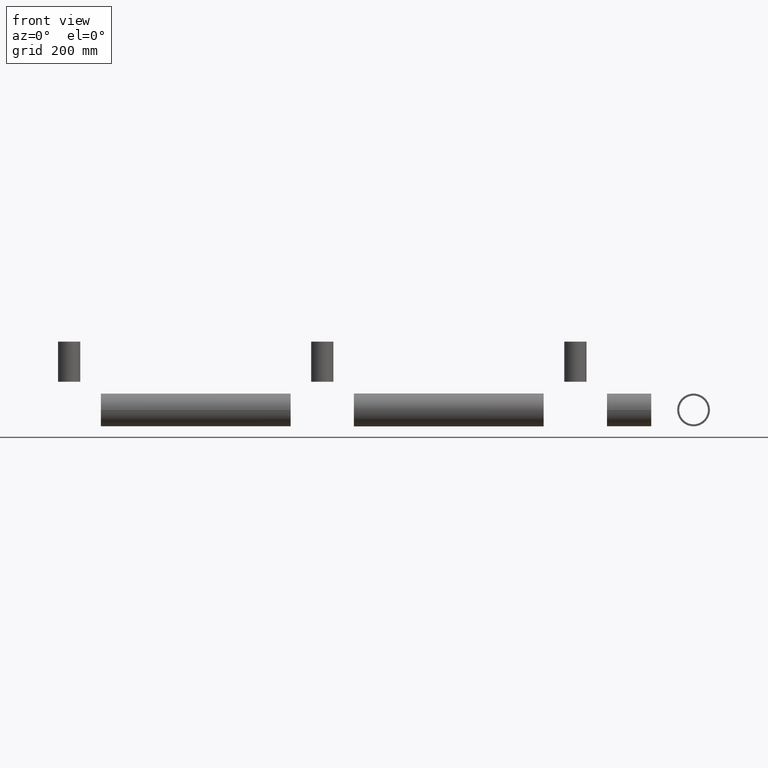
[diagram: clean part render]
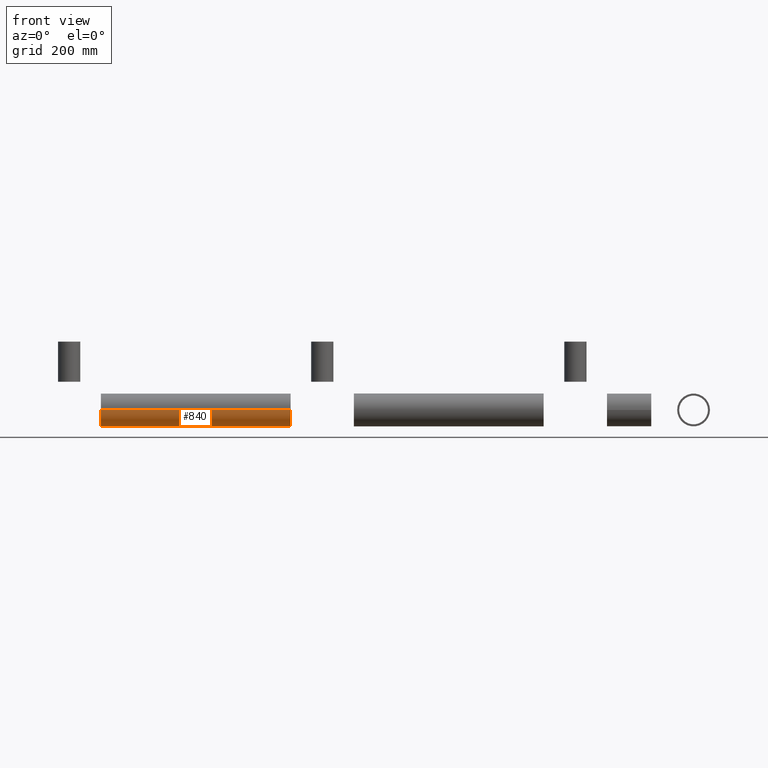
[diagram: same view with one face highlighted and labeled with its STEP entity id]
A machine part, front view. The second image highlights one B-rep face of the part: STEP entity #840.
In plain terms, the highlighted cylindrical surface (edge-blend (fillet) strip) has radius 44.45 mm, axis along (1, 0, -0).
Its self-contained STEP definition (entity closure, byte-faithful):
#22 = CARTESIAN_POINT ( 'NONE',  ( -599.3000000000000682, -44.45000000000001705, 5.443555022209986486E-15 ) ) ;
#35 = CIRCLE ( 'NONE', #239, 44.45000000000000995 ) ;
#39 = DIRECTION ( 'NONE',  ( 1.000000000000000000, 1.361513478024022673E-17, -5.755200308641385394E-66 ) ) ;
#69 = LINE ( 'NONE', #1125, #617 ) ;
#76 = VERTEX_POINT ( 'NONE', #390 ) ;
#102 = VERTEX_POINT ( 'NONE', #112 ) ;
#105 = CARTESIAN_POINT ( 'NONE',  ( -599.3000000000000682, -6.992733223131379957E-15, -2.091494006573643760E-63 ) ) ;
#112 = CARTESIAN_POINT ( 'NONE',  ( -85.70000000000000284, -44.45000000000000995, 5.443555022209986486E-15 ) ) ;
#116 = LINE ( 'NONE', #22, #398 ) ;
#156 = ORIENTED_EDGE ( 'NONE', *, *, #1115, .T. ) ;
#206 = DIRECTION ( 'NONE',  ( 0.000000000000000000, -1.000000000000000000, 0.000000000000000000 ) ) ;
#220 = CIRCLE ( 'NONE', #934, 44.45000000000000995 ) ;
#231 = FACE_OUTER_BOUND ( 'NONE', #832, .T. ) ;
#239 = AXIS2_PLACEMENT_3D ( 'NONE', #470, #962, #206 ) ;
#295 = CARTESIAN_POINT ( 'NONE',  ( -599.3000000000000682, -44.45000000000001705, 5.443555022209986486E-15 ) ) ;
#336 = DIRECTION ( 'NONE',  ( -1.000000000000000000, -1.361513478024022673E-17, 5.755200308641385394E-66 ) ) ;
#344 = ORIENTED_EDGE ( 'NONE', *, *, #1153, .F. ) ;
#390 = CARTESIAN_POINT ( 'NONE',  ( -85.70000000000000284, 44.45000000000000995, -3.569429445832751550E-63 ) ) ;
#398 = VECTOR ( 'NONE', #699, 1000.000000000000000 ) ;
#470 = CARTESIAN_POINT ( 'NONE',  ( -85.70000000000000284, -1.540743955509788682E-30, -5.047364885091860149E-63 ) ) ;
#572 = AXIS2_PLACEMENT_3D ( 'NONE', #892, #39, #1006 ) ;
#617 = VECTOR ( 'NONE', #941, 1000.000000000000000 ) ;
#622 = ORIENTED_EDGE ( 'NONE', *, *, #757, .F. ) ;
#626 = CYLINDRICAL_SURFACE ( 'NONE', #572, 44.45000000000000995 ) ;
#699 = DIRECTION ( 'NONE',  ( 1.000000000000000000, 1.361513478024022673E-17, -5.755200308641385394E-66 ) ) ;
#757 = EDGE_CURVE ( 'NONE', #1119, #1167, #220, .T. ) ;
#832 = EDGE_LOOP ( 'NONE', ( #344, #622, #156, #983 ) ) ;
#840 = ADVANCED_FACE ( 'NONE', ( #231 ), #626, .T. ) ;
#892 = CARTESIAN_POINT ( 'NONE',  ( -599.3000000000000682, -6.992733223131379957E-15, -2.091494006573643760E-63 ) ) ;
#934 = AXIS2_PLACEMENT_3D ( 'NONE', #105, #336, #998 ) ;
#941 = DIRECTION ( 'NONE',  ( 1.000000000000000000, 1.361513478024022673E-17, -5.755200308641385394E-66 ) ) ;
#962 = DIRECTION ( 'NONE',  ( -1.000000000000000000, -1.361513478024022673E-17, 5.755200308641385394E-66 ) ) ;
#983 = ORIENTED_EDGE ( 'NONE', *, *, #1176, .T. ) ;
#998 = DIRECTION ( 'NONE',  ( 0.000000000000000000, -1.000000000000000000, 0.000000000000000000 ) ) ;
#1006 = DIRECTION ( 'NONE',  ( 0.000000000000000000, 1.000000000000000000, 0.000000000000000000 ) ) ;
#1115 = EDGE_CURVE ( 'NONE', #1119, #76, #69, .T. ) ;
#1119 = VERTEX_POINT ( 'NONE', #1197 ) ;
#1125 = CARTESIAN_POINT ( 'NONE',  ( -599.3000000000000682, 44.45000000000000284, -2.091494006573643760E-63 ) ) ;
#1153 = EDGE_CURVE ( 'NONE', #1167, #102, #116, .T. ) ;
#1167 = VERTEX_POINT ( 'NONE', #295 ) ;
#1176 = EDGE_CURVE ( 'NONE', #76, #102, #35, .T. ) ;
#1197 = CARTESIAN_POINT ( 'NONE',  ( -599.3000000000000682, 44.45000000000000284, -3.569429445832751550E-63 ) ) ;